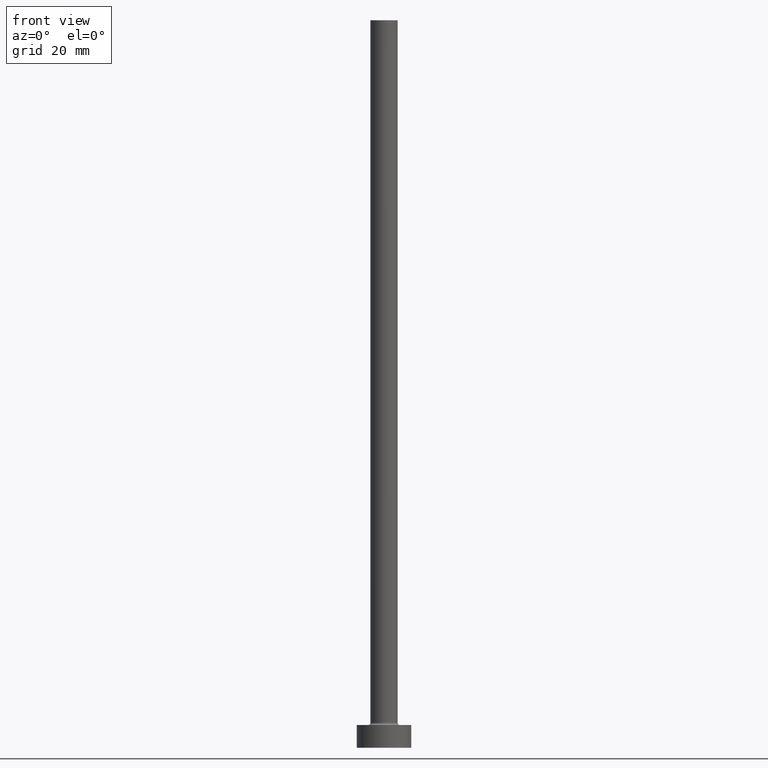
[diagram: clean part render]
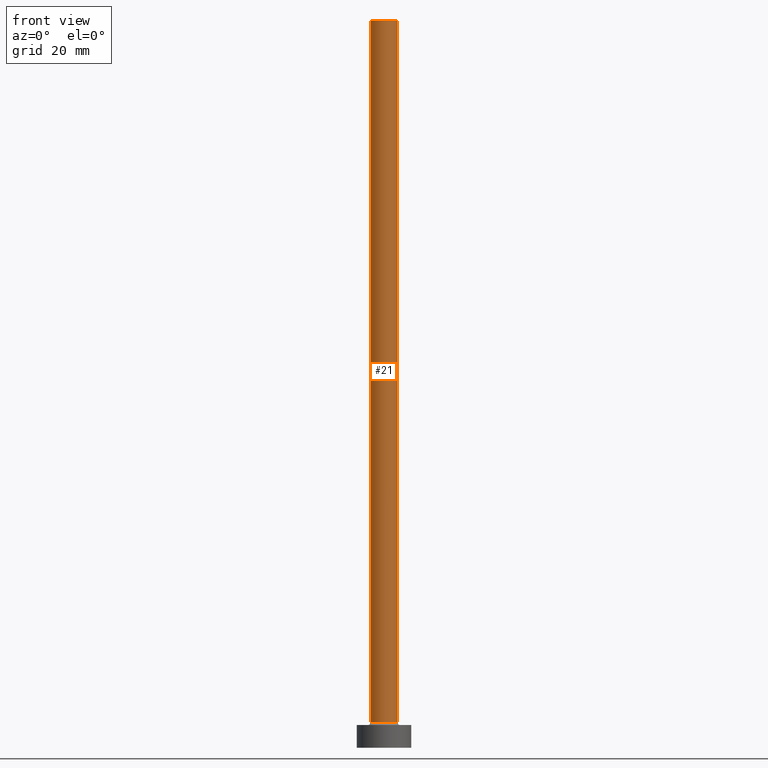
[diagram: same view with one face highlighted and labeled with its STEP entity id]
A machine part, front view. The second image highlights one B-rep face of the part: STEP entity #21.
In plain terms, the highlighted cylindrical surface (edge-blend (fillet) strip) has radius 3 mm, axis along (-0, -0, -1).
Its self-contained STEP definition (entity closure, byte-faithful):
#6 = CARTESIAN_POINT ( 'NONE',  ( 3.000000000000000444, 3.673940397442060361E-16, 160.0000000000000000 ) ) ;
#21 = ADVANCED_FACE ( 'NONE', ( #307 ), #157, .T. ) ;
#26 = AXIS2_PLACEMENT_3D ( 'NONE', #409, #93, #445 ) ;
#39 = ORIENTED_EDGE ( 'NONE', *, *, #275, .T. ) ;
#43 = LINE ( 'NONE', #6, #448 ) ;
#74 = DIRECTION ( 'NONE',  ( 1.000000000000000000, 0.000000000000000000, 0.000000000000000000 ) ) ;
#77 = VERTEX_POINT ( 'NONE', #359 ) ;
#78 = EDGE_CURVE ( 'NONE', #362, #383, #43, .T. ) ;
#93 = DIRECTION ( 'NONE',  ( 0.000000000000000000, 0.000000000000000000, 1.000000000000000000 ) ) ;
#157 = CYLINDRICAL_SURFACE ( 'NONE', #412, 3.000000000000000444 ) ;
#205 = DIRECTION ( 'NONE',  ( -1.000000000000000000, 0.000000000000000000, 0.000000000000000000 ) ) ;
#231 = CIRCLE ( 'NONE', #386, 3.000000000000000444 ) ;
#265 = CARTESIAN_POINT ( 'NONE',  ( 0.000000000000000000, 0.000000000000000000, 160.0000000000000000 ) ) ;
#275 = EDGE_CURVE ( 'NONE', #328, #77, #401, .T. ) ;
#281 = DIRECTION ( 'NONE',  ( 0.000000000000000000, 0.000000000000000000, 1.000000000000000000 ) ) ;
#288 = ORIENTED_EDGE ( 'NONE', *, *, #457, .F. ) ;
#307 = FACE_OUTER_BOUND ( 'NONE', #376, .T. ) ;
#310 = DIRECTION ( 'NONE',  ( -0.000000000000000000, -0.000000000000000000, -1.000000000000000000 ) ) ;
#311 = CIRCLE ( 'NONE', #26, 3.000000000000000444 ) ;
#315 = CARTESIAN_POINT ( 'NONE',  ( 0.000000000000000000, 0.000000000000000000, 5.500000000000005329 ) ) ;
#328 = VERTEX_POINT ( 'NONE', #347 ) ;
#345 = CARTESIAN_POINT ( 'NONE',  ( -3.000000000000000444, 0.000000000000000000, 160.0000000000000000 ) ) ;
#347 = CARTESIAN_POINT ( 'NONE',  ( -3.000000000000000444, 0.000000000000000000, 160.0000000000000000 ) ) ;
#355 = ORIENTED_EDGE ( 'NONE', *, *, #384, .T. ) ;
#359 = CARTESIAN_POINT ( 'NONE',  ( -3.000000000000000444, 0.000000000000000000, 5.500000000000005329 ) ) ;
#360 = CARTESIAN_POINT ( 'NONE',  ( 3.000000000000000444, 3.673940397442060361E-16, 160.0000000000000000 ) ) ;
#361 = VECTOR ( 'NONE', #310, 1000.000000000000000 ) ;
#362 = VERTEX_POINT ( 'NONE', #360 ) ;
#376 = EDGE_LOOP ( 'NONE', ( #421, #288, #39, #355 ) ) ;
#383 = VERTEX_POINT ( 'NONE', #399 ) ;
#384 = EDGE_CURVE ( 'NONE', #77, #383, #231, .T. ) ;
#386 = AXIS2_PLACEMENT_3D ( 'NONE', #315, #281, #74 ) ;
#398 = DIRECTION ( 'NONE',  ( -0.000000000000000000, -0.000000000000000000, -1.000000000000000000 ) ) ;
#399 = CARTESIAN_POINT ( 'NONE',  ( 3.000000000000000444, 3.673940397442060361E-16, 5.500000000000005329 ) ) ;
#401 = LINE ( 'NONE', #345, #361 ) ;
#409 = CARTESIAN_POINT ( 'NONE',  ( 0.000000000000000000, 0.000000000000000000, 160.0000000000000000 ) ) ;
#412 = AXIS2_PLACEMENT_3D ( 'NONE', #265, #451, #205 ) ;
#421 = ORIENTED_EDGE ( 'NONE', *, *, #78, .F. ) ;
#445 = DIRECTION ( 'NONE',  ( 1.000000000000000000, 0.000000000000000000, 0.000000000000000000 ) ) ;
#448 = VECTOR ( 'NONE', #398, 1000.000000000000000 ) ;
#451 = DIRECTION ( 'NONE',  ( -0.000000000000000000, -0.000000000000000000, -1.000000000000000000 ) ) ;
#457 = EDGE_CURVE ( 'NONE', #328, #362, #311, .T. ) ;